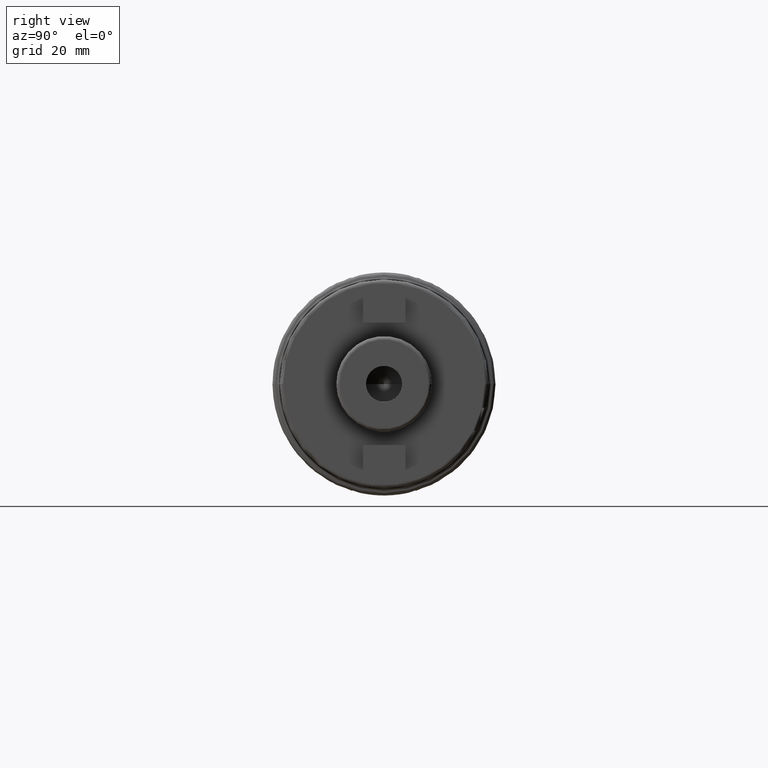
[diagram: clean part render]
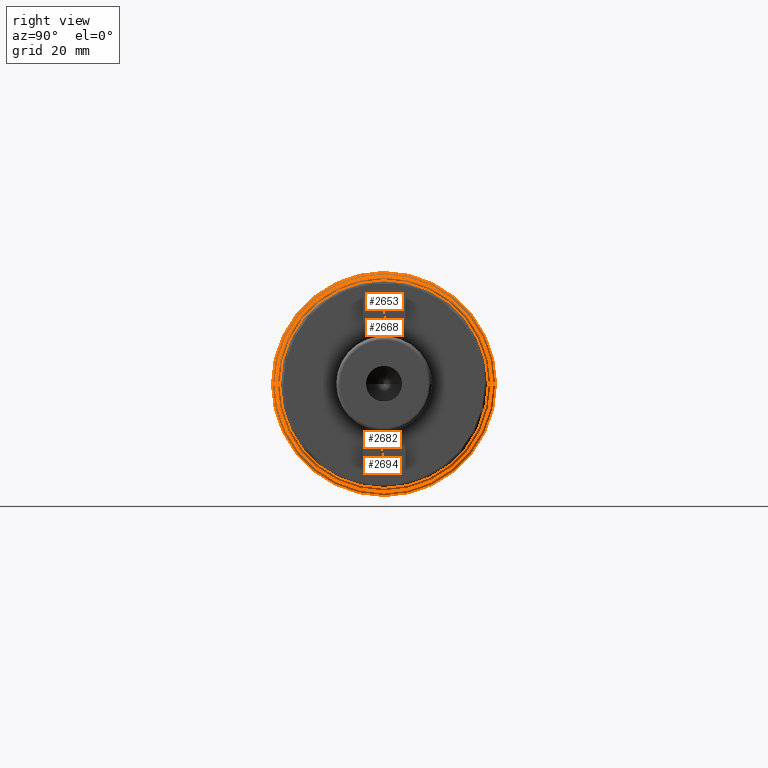
[diagram: same view with one multi-face feature highlighted, each face labeled with its STEP entity id]
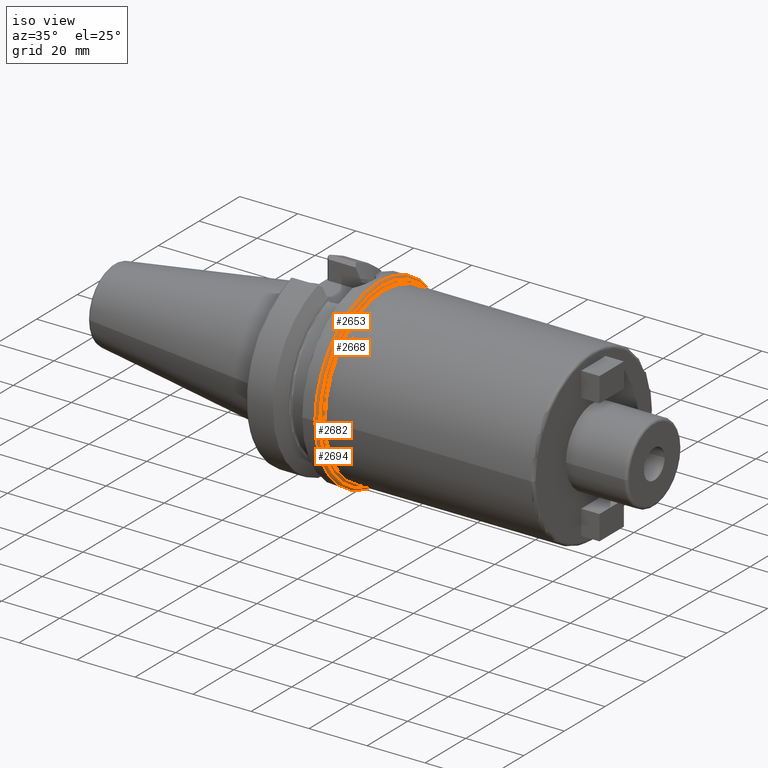
[diagram: same view with one multi-face feature highlighted, each face labeled with its STEP entity id]
A machine part, right view. The highlighted faces form ONE feature: a constant-radius fillet chain: 4 tangent blend faces with common blend radius 1 mm. The faces share edges in the B-rep.
A second angle (iso view) of the same feature is appended — it is thin or edge-on in the first view.
Their STEP definitions:
[1] entity #2653 (Torus):
#792=CARTESIAN_POINT('',(2.6E1,0.E0,0.E0));
#793=DIRECTION('',(1.E0,0.E0,0.E0));
#794=DIRECTION('',(0.E0,1.E0,0.E0));
#795=AXIS2_PLACEMENT_3D('',#792,#793,#794);
#816=CARTESIAN_POINT('',(2.699998046856E1,0.E0,0.E0));
#817=DIRECTION('',(1.E0,0.E0,0.E0));
#818=DIRECTION('',(0.E0,1.E0,0.E0));
#819=AXIS2_PLACEMENT_3D('',#816,#817,#818);
#836=CARTESIAN_POINT('',(2.6E1,3.04875E1,0.E0));
#837=DIRECTION('',(0.E0,0.E0,1.E0));
#838=DIRECTION('',(9.999804685593E-1,6.250000000001E-3,0.E0));
#839=AXIS2_PLACEMENT_3D('',#836,#837,#838);
#841=CARTESIAN_POINT('',(2.6E1,-3.04875E1,0.E0));
#842=DIRECTION('',(0.E0,0.E0,-1.E0));
#843=DIRECTION('',(9.999804685593E-1,-6.250000000001E-3,0.E0));
#844=AXIS2_PLACEMENT_3D('',#841,#842,#843);
#1358=CARTESIAN_POINT('',(2.6E1,3.14875E1,0.E0));
#1359=VERTEX_POINT('',#1358);
#1360=CARTESIAN_POINT('',(2.6E1,-3.14875E1,0.E0));
#1361=VERTEX_POINT('',#1360);
#1579=CARTESIAN_POINT('',(2.699998046856E1,-3.049375E1,0.E0));
#1580=CARTESIAN_POINT('',(2.699998046856E1,3.049375E1,0.E0));
#1581=VERTEX_POINT('',#1579);
#1582=VERTEX_POINT('',#1580);
#2639=CARTESIAN_POINT('',(2.6E1,0.E0,0.E0));
#2640=DIRECTION('',(1.E0,0.E0,0.E0));
#2641=DIRECTION('',(0.E0,-1.E0,0.E0));
#2642=AXIS2_PLACEMENT_3D('',#2639,#2640,#2641);
#2643=TOROIDAL_SURFACE('',#2642,3.04875E1,1.E0);
#2645=ORIENTED_EDGE('',*,*,#2644,.T.);
#2647=ORIENTED_EDGE('',*,*,#2646,.T.);
#2648=ORIENTED_EDGE('',*,*,#2630,.F.);
#2650=ORIENTED_EDGE('',*,*,#2649,.F.);
#2651=EDGE_LOOP('',(#2645,#2647,#2648,#2650));
#2652=FACE_OUTER_BOUND('',#2651,.F.);
#2653=ADVANCED_FACE('',(#2652),#2643,.T.);
#796=CIRCLE('',#795,3.14875E1);
#820=CIRCLE('',#819,3.049375E1);
#840=CIRCLE('',#839,1.E0);
#845=CIRCLE('',#844,1.E0);
#2630=EDGE_CURVE('',#1359,#1361,#796,.T.);
#2644=EDGE_CURVE('',#1582,#1581,#820,.T.);
#2646=EDGE_CURVE('',#1581,#1361,#845,.T.);
#2649=EDGE_CURVE('',#1582,#1359,#840,.T.);
[2] entity #2668 (Torus):
#816=CARTESIAN_POINT('',(2.699998046856E1,0.E0,0.E0));
#817=DIRECTION('',(1.E0,0.E0,0.E0));
#818=DIRECTION('',(0.E0,1.E0,0.E0));
#819=AXIS2_PLACEMENT_3D('',#816,#817,#818);
#821=CARTESIAN_POINT('',(2.799996093712E1,3.05E1,-3.969047313035E-14));
#822=DIRECTION('',(0.E0,0.E0,1.E0));
#823=DIRECTION('',(-9.999804685593E-1,-6.250000000154E-3,0.E0));
#824=AXIS2_PLACEMENT_3D('',#821,#822,#823);
#826=CARTESIAN_POINT('',(2.799996093712E1,-3.05E1,3.458344721707E-14));
#827=DIRECTION('',(0.E0,0.E0,-1.E0));
#828=DIRECTION('',(-9.999804685593E-1,6.250000000154E-3,0.E0));
#829=AXIS2_PLACEMENT_3D('',#826,#827,#828);
#864=CARTESIAN_POINT('',(2.799996093712E1,0.E0,0.E0));
#865=DIRECTION('',(1.E0,0.E0,0.E0));
#866=DIRECTION('',(0.E0,1.E0,0.E0));
#867=AXIS2_PLACEMENT_3D('',#864,#865,#866);
#1514=CARTESIAN_POINT('',(2.799996093712E1,-2.95E1,1.169741494112E-12));
#1516=VERTEX_POINT('',#1514);
#1518=CARTESIAN_POINT('',(2.799996093712E1,2.95E1,-1.177139475821E-12));
#1520=VERTEX_POINT('',#1518);
#1579=CARTESIAN_POINT('',(2.699998046856E1,-3.049375E1,0.E0));
#1580=CARTESIAN_POINT('',(2.699998046856E1,3.049375E1,0.E0));
#1581=VERTEX_POINT('',#1579);
#1582=VERTEX_POINT('',#1580);
#2654=CARTESIAN_POINT('',(2.799996093712E1,0.E0,0.E0));
#2655=DIRECTION('',(1.E0,0.E0,0.E0));
#2656=DIRECTION('',(0.E0,9.999866508422E-1,-5.167024027789E-3));
#2657=AXIS2_PLACEMENT_3D('',#2654,#2655,#2656);
#2658=TOROIDAL_SURFACE('',#2657,3.05E1,1.E0);
#2659=ORIENTED_EDGE('',*,*,#2644,.F.);
#2661=ORIENTED_EDGE('',*,*,#2660,.T.);
#2663=ORIENTED_EDGE('',*,*,#2662,.T.);
#2665=ORIENTED_EDGE('',*,*,#2664,.F.);
#2666=EDGE_LOOP('',(#2659,#2661,#2663,#2665));
#2667=FACE_OUTER_BOUND('',#2666,.F.);
#2668=ADVANCED_FACE('',(#2667),#2658,.F.);
#820=CIRCLE('',#819,3.049375E1);
#825=CIRCLE('',#824,1.E0);
#830=CIRCLE('',#829,1.E0);
#868=CIRCLE('',#867,2.95E1);
#2644=EDGE_CURVE('',#1582,#1581,#820,.T.);
#2660=EDGE_CURVE('',#1582,#1520,#825,.T.);
#2662=EDGE_CURVE('',#1520,#1516,#868,.T.);
#2664=EDGE_CURVE('',#1581,#1516,#830,.T.);
[3] entity #2682 (Torus):
#821=CARTESIAN_POINT('',(2.799996093712E1,3.05E1,-3.969047313035E-14));
#822=DIRECTION('',(0.E0,0.E0,1.E0));
#823=DIRECTION('',(-9.999804685593E-1,-6.250000000154E-3,0.E0));
#824=AXIS2_PLACEMENT_3D('',#821,#822,#823);
#826=CARTESIAN_POINT('',(2.799996093712E1,-3.05E1,3.458344721707E-14));
#827=DIRECTION('',(0.E0,0.E0,-1.E0));
#828=DIRECTION('',(-9.999804685593E-1,6.250000000154E-3,0.E0));
#829=AXIS2_PLACEMENT_3D('',#826,#827,#828);
#831=CARTESIAN_POINT('',(2.699998046856E1,0.E0,0.E0));
#832=DIRECTION('',(1.E0,0.E0,0.E0));
#833=DIRECTION('',(0.E0,-1.E0,0.E0));
#834=AXIS2_PLACEMENT_3D('',#831,#832,#833);
#859=CARTESIAN_POINT('',(2.799996093712E1,0.E0,0.E0));
#860=DIRECTION('',(1.E0,0.E0,0.E0));
#861=DIRECTION('',(0.E0,-1.E0,0.E0));
#862=AXIS2_PLACEMENT_3D('',#859,#860,#861);
#1514=CARTESIAN_POINT('',(2.799996093712E1,-2.95E1,1.169741494112E-12));
#1516=VERTEX_POINT('',#1514);
#1518=CARTESIAN_POINT('',(2.799996093712E1,2.95E1,-1.177139475821E-12));
#1520=VERTEX_POINT('',#1518);
#1579=CARTESIAN_POINT('',(2.699998046856E1,-3.049375E1,0.E0));
#1580=CARTESIAN_POINT('',(2.699998046856E1,3.049375E1,0.E0));
#1581=VERTEX_POINT('',#1579);
#1582=VERTEX_POINT('',#1580);
#2669=CARTESIAN_POINT('',(2.799996093712E1,0.E0,0.E0));
#2670=DIRECTION('',(1.E0,0.E0,0.E0));
#2671=DIRECTION('',(0.E0,-9.999866508422E-1,5.167024027789E-3));
#2672=AXIS2_PLACEMENT_3D('',#2669,#2670,#2671);
#2673=TOROIDAL_SURFACE('',#2672,3.05E1,1.E0);
#2675=ORIENTED_EDGE('',*,*,#2674,.F.);
#2676=ORIENTED_EDGE('',*,*,#2664,.T.);
#2678=ORIENTED_EDGE('',*,*,#2677,.T.);
#2679=ORIENTED_EDGE('',*,*,#2660,.F.);
#2680=EDGE_LOOP('',(#2675,#2676,#2678,#2679));
#2681=FACE_OUTER_BOUND('',#2680,.F.);
#2682=ADVANCED_FACE('',(#2681),#2673,.F.);
#825=CIRCLE('',#824,1.E0);
#830=CIRCLE('',#829,1.E0);
#835=CIRCLE('',#834,3.049375E1);
#863=CIRCLE('',#862,2.95E1);
#2660=EDGE_CURVE('',#1582,#1520,#825,.T.);
#2664=EDGE_CURVE('',#1581,#1516,#830,.T.);
#2674=EDGE_CURVE('',#1581,#1582,#835,.T.);
#2677=EDGE_CURVE('',#1516,#1520,#863,.T.);
[4] entity #2694 (Torus):
#255=CARTESIAN_POINT('',(2.6E1,0.E0,0.E0));
#256=DIRECTION('',(-1.E0,0.E0,0.E0));
#257=DIRECTION('',(0.E0,1.E0,0.E0));
#258=AXIS2_PLACEMENT_3D('',#255,#256,#257);
#831=CARTESIAN_POINT('',(2.699998046856E1,0.E0,0.E0));
#832=DIRECTION('',(1.E0,0.E0,0.E0));
#833=DIRECTION('',(0.E0,-1.E0,0.E0));
#834=AXIS2_PLACEMENT_3D('',#831,#832,#833);
#836=CARTESIAN_POINT('',(2.6E1,3.04875E1,0.E0));
#837=DIRECTION('',(0.E0,0.E0,1.E0));
#838=DIRECTION('',(9.999804685593E-1,6.250000000001E-3,0.E0));
#839=AXIS2_PLACEMENT_3D('',#836,#837,#838);
#841=CARTESIAN_POINT('',(2.6E1,-3.04875E1,0.E0));
#842=DIRECTION('',(0.E0,0.E0,-1.E0));
#843=DIRECTION('',(9.999804685593E-1,-6.250000000001E-3,0.E0));
#844=AXIS2_PLACEMENT_3D('',#841,#842,#843);
#1358=CARTESIAN_POINT('',(2.6E1,3.14875E1,0.E0));
#1359=VERTEX_POINT('',#1358);
#1360=CARTESIAN_POINT('',(2.6E1,-3.14875E1,0.E0));
#1361=VERTEX_POINT('',#1360);
#1579=CARTESIAN_POINT('',(2.699998046856E1,-3.049375E1,0.E0));
#1580=CARTESIAN_POINT('',(2.699998046856E1,3.049375E1,0.E0));
#1581=VERTEX_POINT('',#1579);
#1582=VERTEX_POINT('',#1580);
#2683=CARTESIAN_POINT('',(2.6E1,0.E0,0.E0));
#2684=DIRECTION('',(1.E0,0.E0,0.E0));
#2685=DIRECTION('',(0.E0,-1.E0,0.E0));
#2686=AXIS2_PLACEMENT_3D('',#2683,#2684,#2685);
#2687=TOROIDAL_SURFACE('',#2686,3.04875E1,1.E0);
#2688=ORIENTED_EDGE('',*,*,#2674,.T.);
#2689=ORIENTED_EDGE('',*,*,#2649,.T.);
#2690=ORIENTED_EDGE('',*,*,#1921,.T.);
#2691=ORIENTED_EDGE('',*,*,#2646,.F.);
#2692=EDGE_LOOP('',(#2688,#2689,#2690,#2691));
#2693=FACE_OUTER_BOUND('',#2692,.F.);
#2694=ADVANCED_FACE('',(#2693),#2687,.T.);
#259=CIRCLE('',#258,3.14875E1);
#835=CIRCLE('',#834,3.049375E1);
#840=CIRCLE('',#839,1.E0);
#845=CIRCLE('',#844,1.E0);
#1921=EDGE_CURVE('',#1359,#1361,#259,.T.);
#2646=EDGE_CURVE('',#1581,#1361,#845,.T.);
#2649=EDGE_CURVE('',#1582,#1359,#840,.T.);
#2674=EDGE_CURVE('',#1581,#1582,#835,.T.);